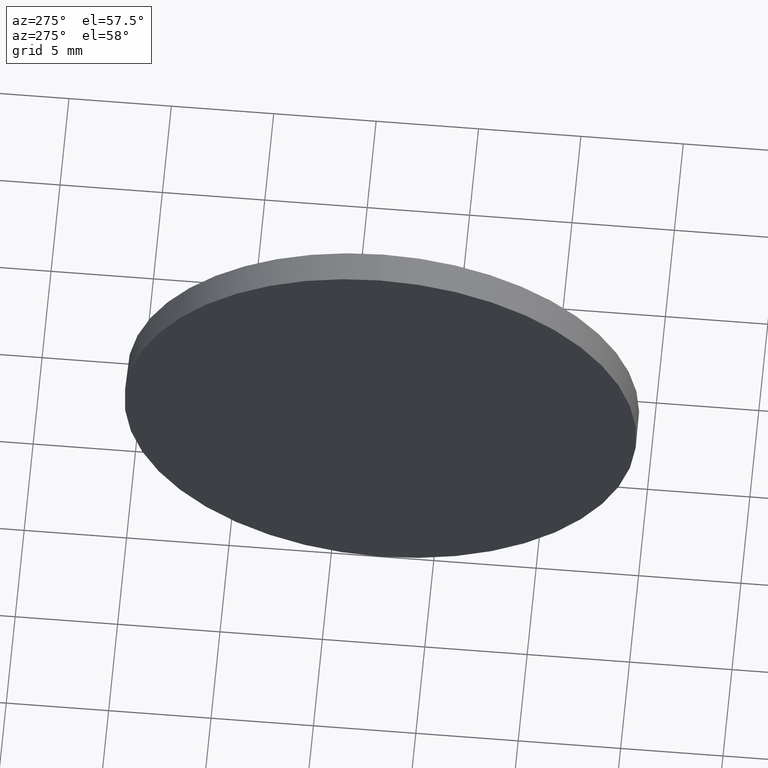
[diagram: clean part render]
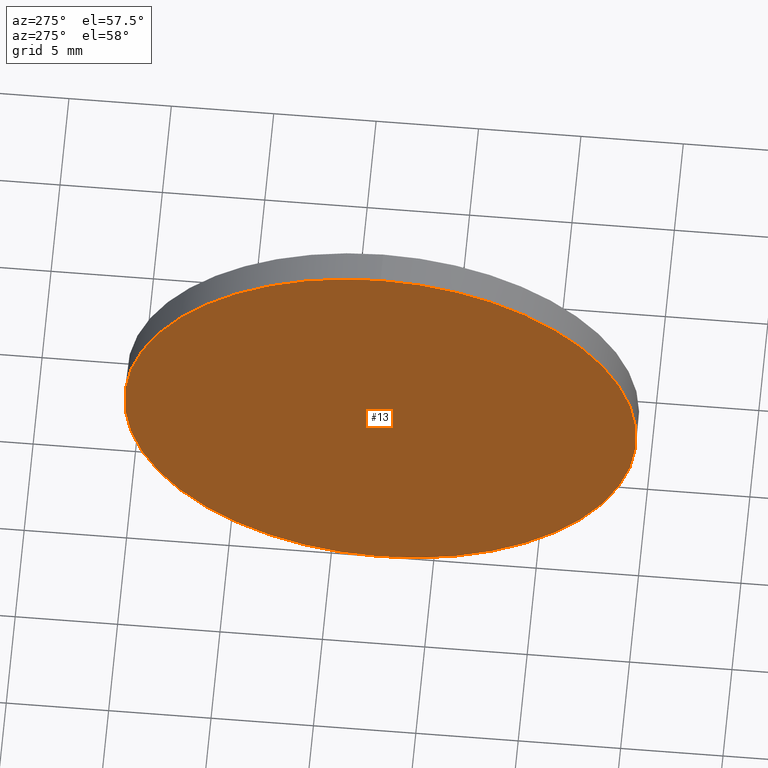
[diagram: same view with one face highlighted and labeled with its STEP entity id]
A machine part, auxiliary view. The second image highlights one B-rep face of the part: STEP entity #13.
In plain terms, the highlighted planar face has unit normal (1, 0, 0).
Its self-contained STEP definition (entity closure, byte-faithful):
#7 = CARTESIAN_POINT ( 'NONE',  ( 549.6628150025262600, 7.574565257038786500, -12.50000000000000000 ) ) ;
#10 = AXIS2_PLACEMENT_3D ( 'NONE', #67, #163, #97 ) ;
#13 = ADVANCED_FACE ( 'NONE', ( #107 ), #172, .F. ) ;
#15 = VERTEX_POINT ( 'NONE', #133 ) ;
#36 = CARTESIAN_POINT ( 'NONE',  ( 549.6628150025262600, 7.574565257038784700, 0.0000000000000000000 ) ) ;
#56 = AXIS2_PLACEMENT_3D ( 'NONE', #79, #173, #132 ) ;
#60 = CIRCLE ( 'NONE', #10, 12.50000000000000000 ) ;
#67 = CARTESIAN_POINT ( 'NONE',  ( 549.6628150025262600, 7.574565257038784700, 0.0000000000000000000 ) ) ;
#72 = DIRECTION ( 'NONE',  ( -1.000000000000000000, -0.0000000000000000000, -0.0000000000000000000 ) ) ;
#79 = CARTESIAN_POINT ( 'NONE',  ( 549.6628150025262600, 7.574565257038784700, 0.0000000000000000000 ) ) ;
#97 = DIRECTION ( 'NONE',  ( 0.0000000000000000000, 0.0000000000000000000, 1.000000000000000000 ) ) ;
#107 = FACE_OUTER_BOUND ( 'NONE', #118, .T. ) ;
#118 = EDGE_LOOP ( 'NONE', ( #131, #154 ) ) ;
#131 = ORIENTED_EDGE ( 'NONE', *, *, #178, .T. ) ;
#132 = DIRECTION ( 'NONE',  ( 0.0000000000000000000, 0.0000000000000000000, -1.000000000000000000 ) ) ;
#133 = CARTESIAN_POINT ( 'NONE',  ( 549.6628150025262600, 7.574565257038784700, 12.50000000000000000 ) ) ;
#141 = DIRECTION ( 'NONE',  ( 0.0000000000000000000, 0.0000000000000000000, 1.000000000000000000 ) ) ;
#143 = VERTEX_POINT ( 'NONE', #7 ) ;
#154 = ORIENTED_EDGE ( 'NONE', *, *, #168, .T. ) ;
#163 = DIRECTION ( 'NONE',  ( -1.000000000000000000, -0.0000000000000000000, -0.0000000000000000000 ) ) ;
#164 = AXIS2_PLACEMENT_3D ( 'NONE', #36, #72, #141 ) ;
#168 = EDGE_CURVE ( 'NONE', #143, #15, #60, .T. ) ;
#171 = CIRCLE ( 'NONE', #164, 12.50000000000000000 ) ;
#172 = PLANE ( 'NONE',  #56 ) ;
#173 = DIRECTION ( 'NONE',  ( 1.000000000000000000, 0.0000000000000000000, 0.0000000000000000000 ) ) ;
#178 = EDGE_CURVE ( 'NONE', #15, #143, #171, .T. ) ;